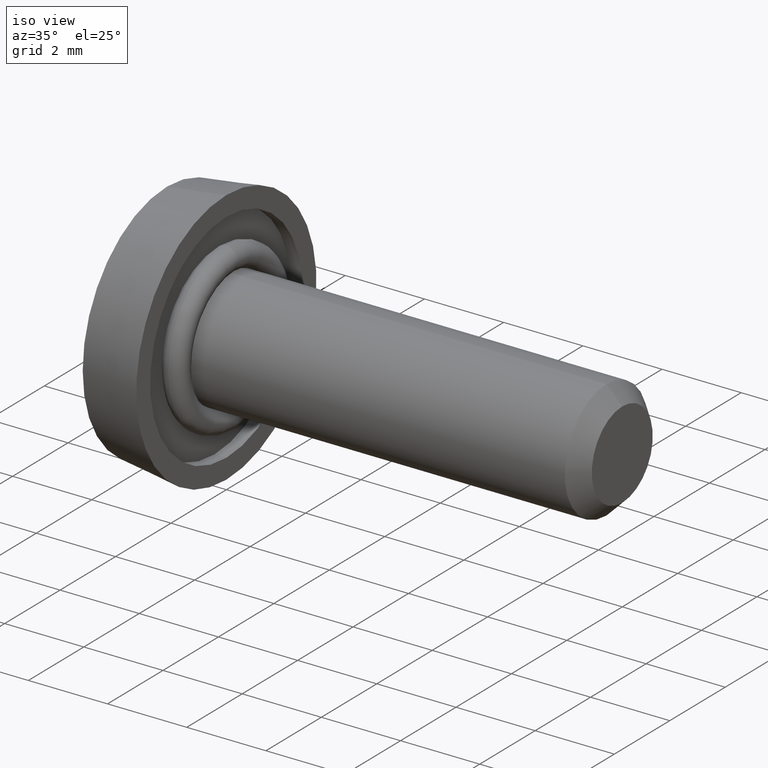
[diagram: clean part render]
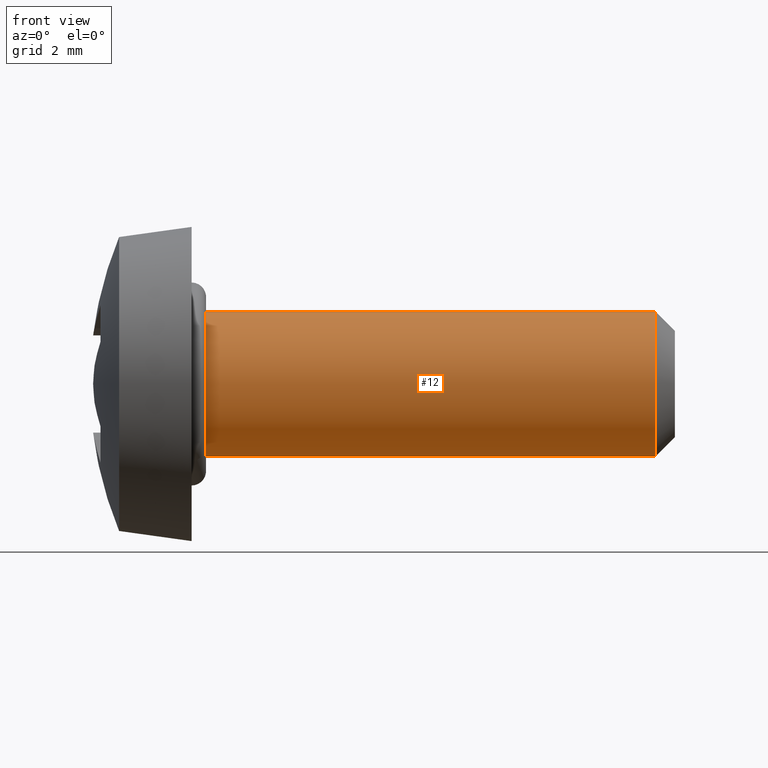
[diagram: tour spotlight — one face highlighted and labeled with its STEP entity id]
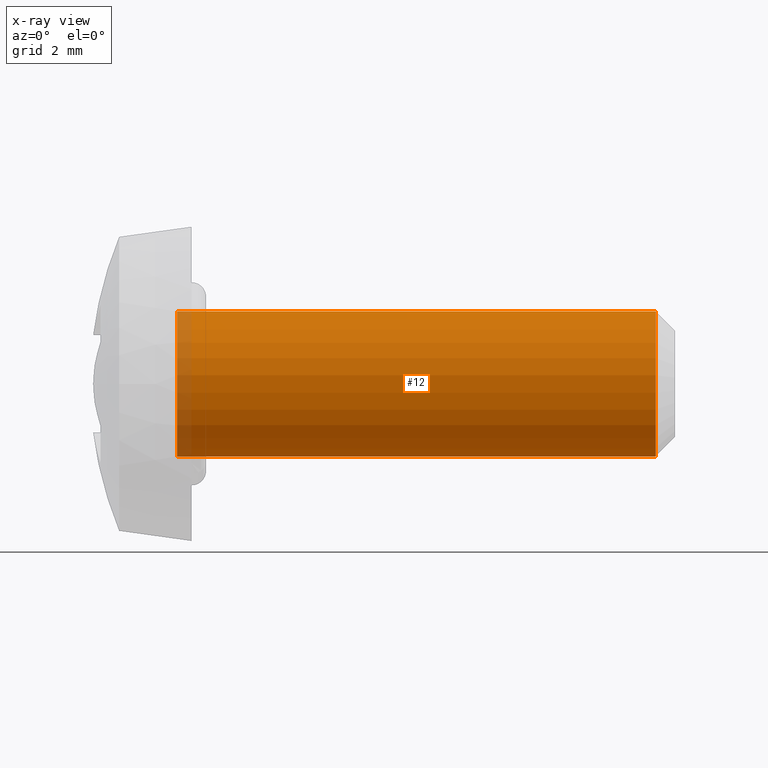
[diagram: x-ray of the same camera — body ghosted, this tour face saturated]
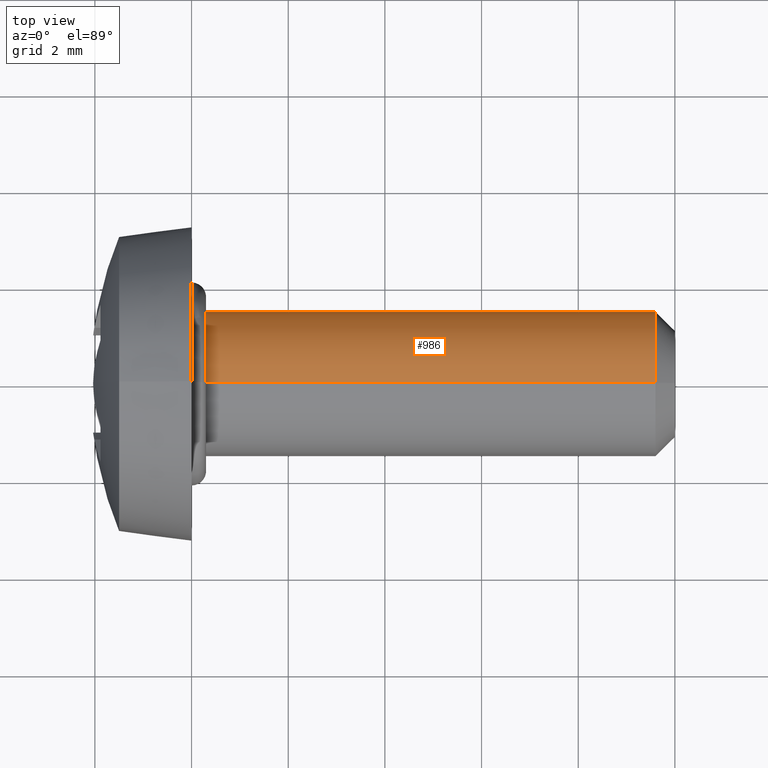
[diagram: tour spotlight — one face highlighted and labeled with its STEP entity id]
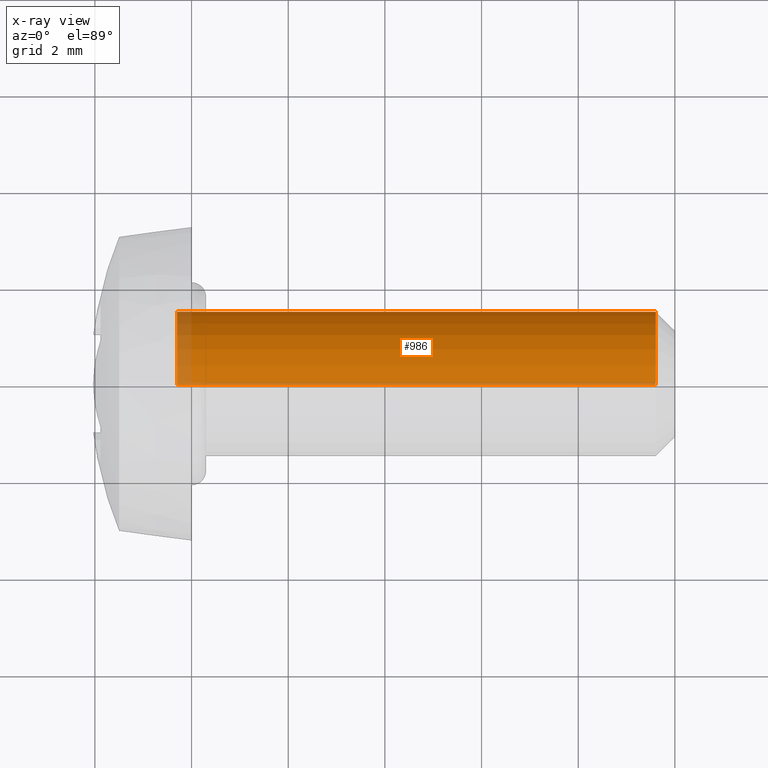
[diagram: x-ray of the same camera — body ghosted, this tour face saturated]
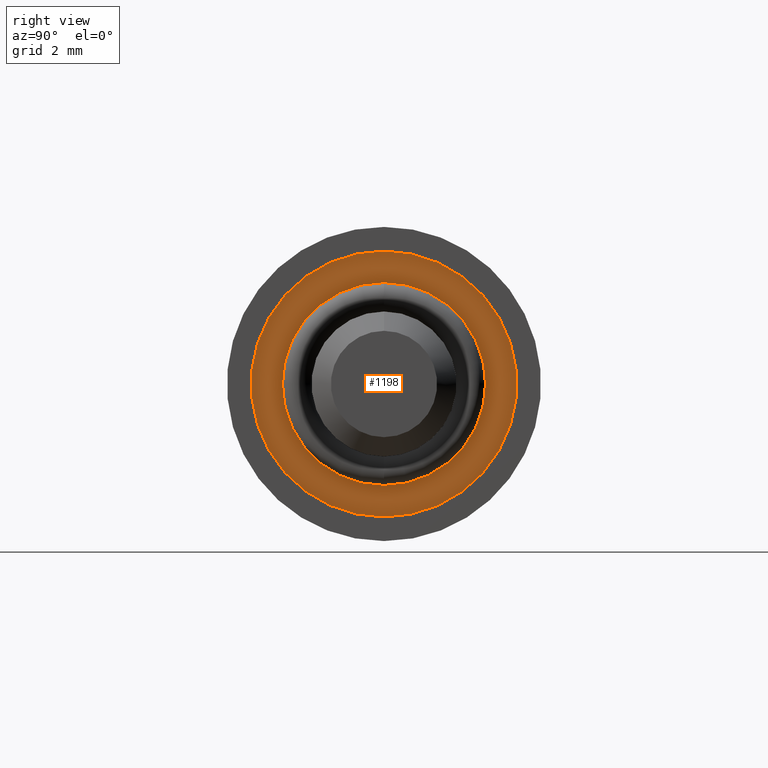
[diagram: tour spotlight — one face highlighted and labeled with its STEP entity id]
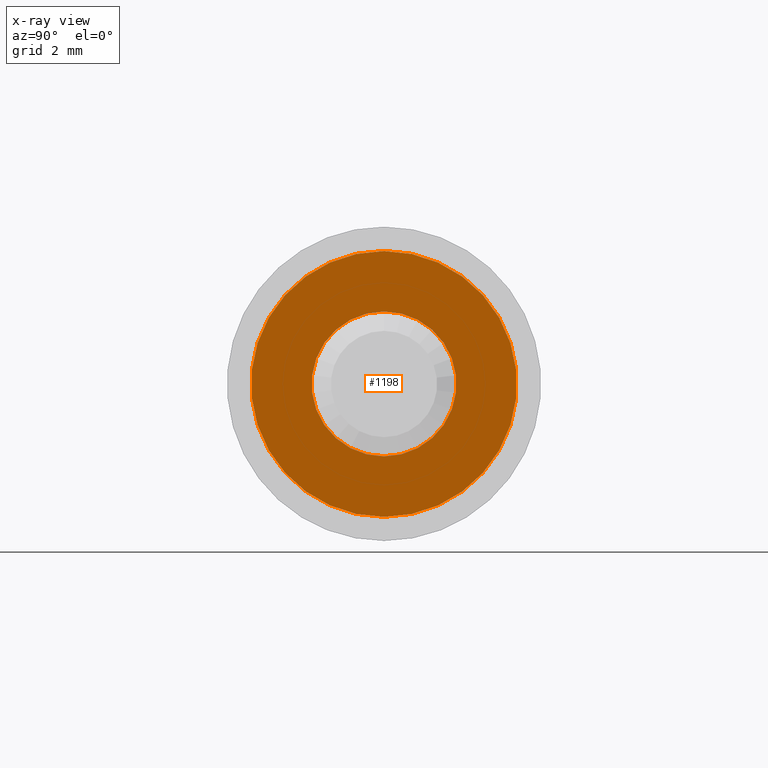
[diagram: x-ray of the same camera — body ghosted, this tour face saturated]
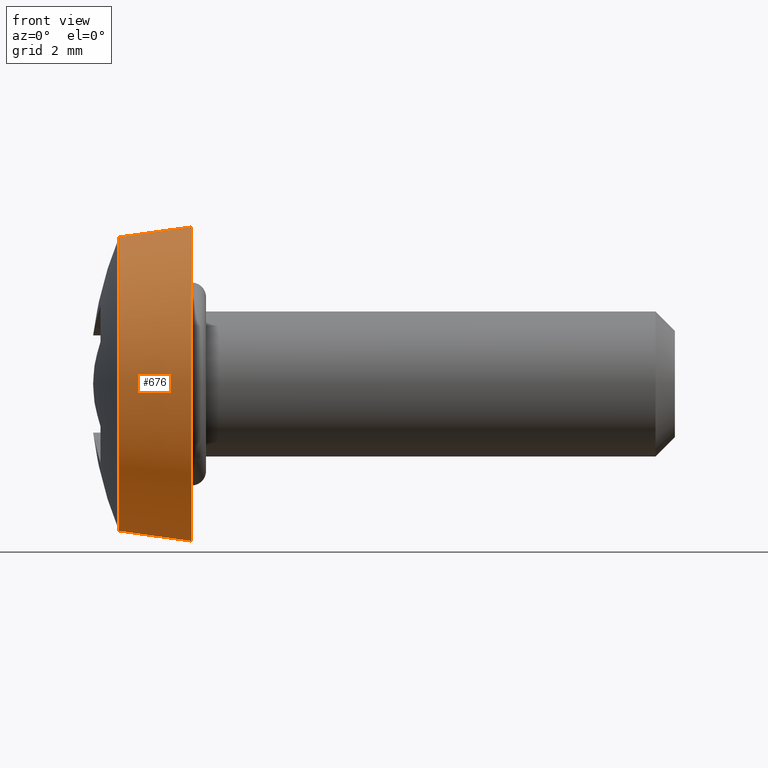
[diagram: tour spotlight — one face highlighted and labeled with its STEP entity id]
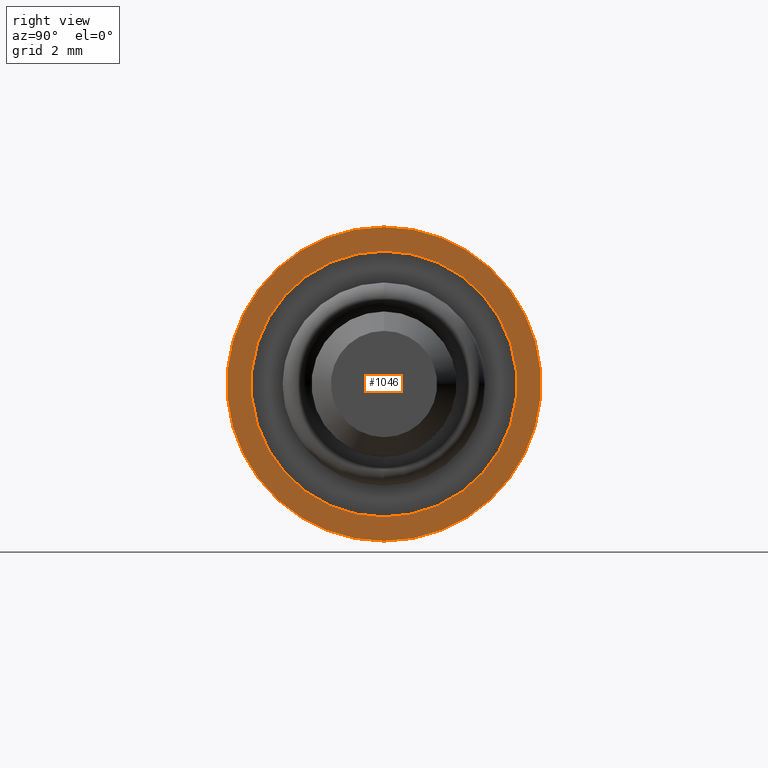
[diagram: tour spotlight — one face highlighted and labeled with its STEP entity id]
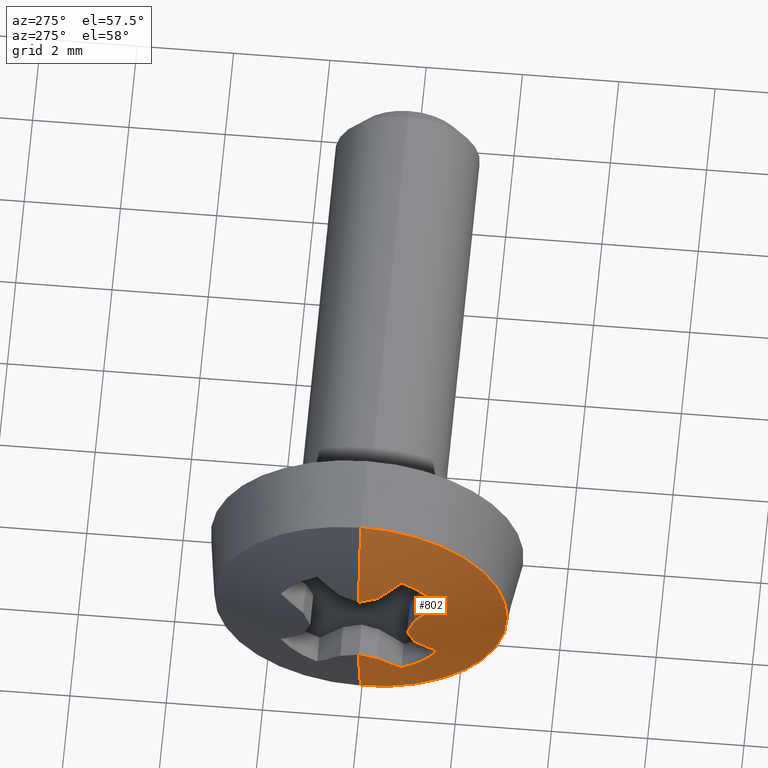
[diagram: tour spotlight — one face highlighted and labeled with its STEP entity id]
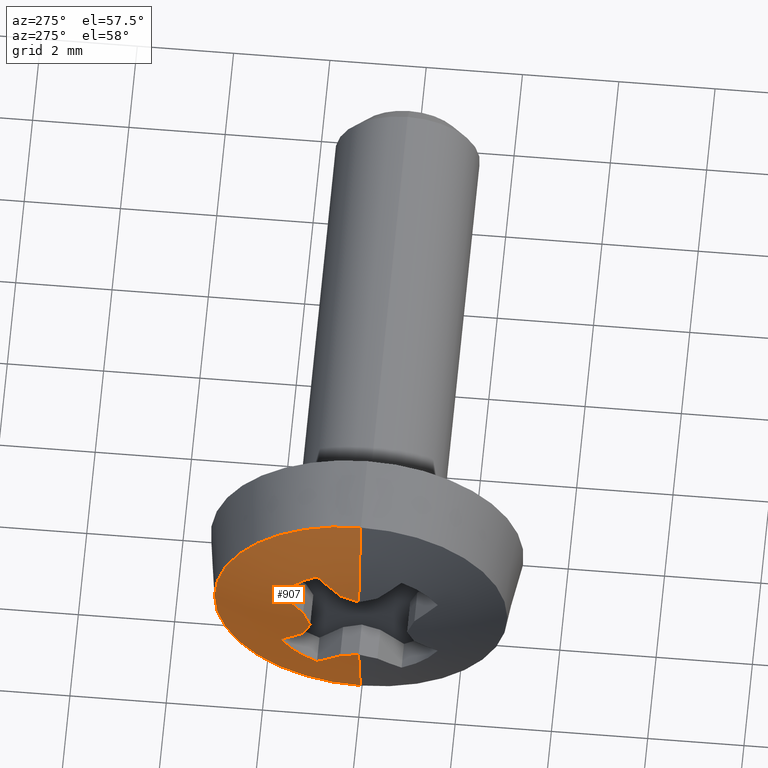
[diagram: tour spotlight — one face highlighted and labeled with its STEP entity id]
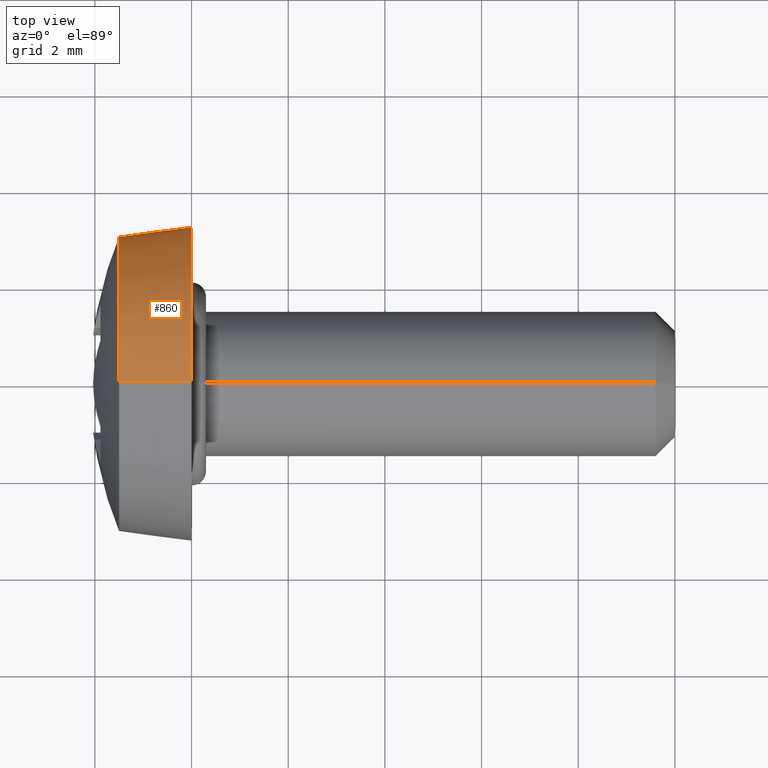
[diagram: tour spotlight — one face highlighted and labeled with its STEP entity id]
A machine part: a face-by-face anatomy tour. The part has 38 B-rep faces; the first image is the clean iso view, then the 8 largest visible faces are spotlighted one at a time (largest first), each with its STEP entity span.

Face 1 — front view, entity #12. An x-ray twin of the same camera follows (body ghosted, this face saturated) — the face is partly hidden behind the body. In plain terms, the highlighted cylindrical surface (partial cylindrical patch) has radius 1.5 mm, axis along (-1, -0, -0).
Definition (entity closure, byte-faithful):
#12 = ADVANCED_FACE ( 'NONE', ( #1003 ), #508, .T. ) ;
#41 = EDGE_CURVE ( 'NONE', #803, #1025, #533, .T. ) ;
#67 = EDGE_LOOP ( 'NONE', ( #706, #188, #388, #282 ) ) ;
#106 = DIRECTION ( 'NONE',  ( 0.0000000000000000000, 0.0000000000000000000, -1.000000000000000000 ) ) ;
#124 = EDGE_CURVE ( 'NONE', #1025, #276, #1193, .T. ) ;
#138 = AXIS2_PLACEMENT_3D ( 'NONE', #589, #918, #813 ) ;
#180 = VECTOR ( 'NONE', #623, 1000.000000000000000 ) ;
#188 = ORIENTED_EDGE ( 'NONE', *, *, #41, .T. ) ;
#226 = LINE ( 'NONE', #977, #758 ) ;
#276 = VERTEX_POINT ( 'NONE', #645 ) ;
#282 = ORIENTED_EDGE ( 'NONE', *, *, #577, .T. ) ;
#386 = VERTEX_POINT ( 'NONE', #815 ) ;
#388 = ORIENTED_EDGE ( 'NONE', *, *, #124, .T. ) ;
#485 = CARTESIAN_POINT ( 'NONE',  ( 9.600000000000001400, 1.836970198721029900E-016, -1.500000000000000400 ) ) ;
#508 = CYLINDRICAL_SURFACE ( 'NONE', #138, 1.500000000000000200 ) ;
#533 = CIRCLE ( 'NONE', #1111, 1.500000000000000200 ) ;
#577 = EDGE_CURVE ( 'NONE', #276, #386, #779, .T. ) ;
#589 = CARTESIAN_POINT ( 'NONE',  ( 10.00000000000000000, 0.0000000000000000000, 0.0000000000000000000 ) ) ;
#621 = CARTESIAN_POINT ( 'NONE',  ( 9.600000000000001400, 0.0000000000000000000, 1.500000000000000400 ) ) ;
#623 = DIRECTION ( 'NONE',  ( -1.000000000000000000, -0.0000000000000000000, -0.0000000000000000000 ) ) ;
#632 = AXIS2_PLACEMENT_3D ( 'NONE', #1131, #1179, #106 ) ;
#645 = CARTESIAN_POINT ( 'NONE',  ( -0.2999999999999999900, 0.0000000000000000000, 1.500000000000000200 ) ) ;
#666 = CARTESIAN_POINT ( 'NONE',  ( 10.00000000000000000, 0.0000000000000000000, 1.500000000000000200 ) ) ;
#706 = ORIENTED_EDGE ( 'NONE', *, *, #1060, .F. ) ;
#708 = DIRECTION ( 'NONE',  ( 0.0000000000000000000, 0.0000000000000000000, -1.000000000000000000 ) ) ;
#758 = VECTOR ( 'NONE', #770, 1000.000000000000000 ) ;
#770 = DIRECTION ( 'NONE',  ( -1.000000000000000000, -0.0000000000000000000, -0.0000000000000000000 ) ) ;
#779 = CIRCLE ( 'NONE', #632, 1.500000000000000200 ) ;
#803 = VERTEX_POINT ( 'NONE', #485 ) ;
#813 = DIRECTION ( 'NONE',  ( 0.0000000000000000000, 0.0000000000000000000, 1.000000000000000000 ) ) ;
#815 = CARTESIAN_POINT ( 'NONE',  ( -0.2999999999999999900, 1.836970198721030200E-016, -1.500000000000000200 ) ) ;
#918 = DIRECTION ( 'NONE',  ( -1.000000000000000000, -0.0000000000000000000, -0.0000000000000000000 ) ) ;
#977 = CARTESIAN_POINT ( 'NONE',  ( 10.00000000000000000, 1.836970198721030200E-016, -1.500000000000000200 ) ) ;
#1003 = FACE_OUTER_BOUND ( 'NONE', #67, .T. ) ;
#1025 = VERTEX_POINT ( 'NONE', #621 ) ;
#1049 = CARTESIAN_POINT ( 'NONE',  ( 9.600000000000001400, 0.0000000000000000000, 0.0000000000000000000 ) ) ;
#1060 = EDGE_CURVE ( 'NONE', #803, #386, #226, .T. ) ;
#1111 = AXIS2_PLACEMENT_3D ( 'NONE', #1049, #1162, #708 ) ;
#1131 = CARTESIAN_POINT ( 'NONE',  ( -0.2999999999999999900, 0.0000000000000000000, 0.0000000000000000000 ) ) ;
#1162 = DIRECTION ( 'NONE',  ( -1.000000000000000000, 0.0000000000000000000, 0.0000000000000000000 ) ) ;
#1179 = DIRECTION ( 'NONE',  ( 1.000000000000000000, 0.0000000000000000000, 0.0000000000000000000 ) ) ;
#1193 = LINE ( 'NONE', #666, #180 ) ;

Face 2 — top view, entity #986. An x-ray twin of the same camera follows (body ghosted, this face saturated) — the face is partly hidden behind the body. In plain terms, the highlighted cylindrical surface (partial cylindrical patch) has radius 1.5 mm, axis along (-1, -0, -0).
Definition (entity closure, byte-faithful):
#97 = CIRCLE ( 'NONE', #880, 1.500000000000000200 ) ;
#115 = FACE_OUTER_BOUND ( 'NONE', #870, .T. ) ;
#124 = EDGE_CURVE ( 'NONE', #1025, #276, #1193, .T. ) ;
#169 = AXIS2_PLACEMENT_3D ( 'NONE', #440, #244, #512 ) ;
#180 = VECTOR ( 'NONE', #623, 1000.000000000000000 ) ;
#226 = LINE ( 'NONE', #977, #758 ) ;
#244 = DIRECTION ( 'NONE',  ( 1.000000000000000000, 0.0000000000000000000, 0.0000000000000000000 ) ) ;
#276 = VERTEX_POINT ( 'NONE', #645 ) ;
#297 = DIRECTION ( 'NONE',  ( 0.0000000000000000000, 0.0000000000000000000, -1.000000000000000000 ) ) ;
#320 = CYLINDRICAL_SURFACE ( 'NONE', #835, 1.500000000000000200 ) ;
#386 = VERTEX_POINT ( 'NONE', #815 ) ;
#440 = CARTESIAN_POINT ( 'NONE',  ( -0.2999999999999999900, 0.0000000000000000000, 0.0000000000000000000 ) ) ;
#485 = CARTESIAN_POINT ( 'NONE',  ( 9.600000000000001400, 1.836970198721029900E-016, -1.500000000000000400 ) ) ;
#512 = DIRECTION ( 'NONE',  ( 0.0000000000000000000, 0.0000000000000000000, -1.000000000000000000 ) ) ;
#554 = ORIENTED_EDGE ( 'NONE', *, *, #1212, .T. ) ;
#621 = CARTESIAN_POINT ( 'NONE',  ( 9.600000000000001400, 0.0000000000000000000, 1.500000000000000400 ) ) ;
#623 = DIRECTION ( 'NONE',  ( -1.000000000000000000, -0.0000000000000000000, -0.0000000000000000000 ) ) ;
#645 = CARTESIAN_POINT ( 'NONE',  ( -0.2999999999999999900, 0.0000000000000000000, 1.500000000000000200 ) ) ;
#666 = CARTESIAN_POINT ( 'NONE',  ( 10.00000000000000000, 0.0000000000000000000, 1.500000000000000200 ) ) ;
#682 = DIRECTION ( 'NONE',  ( -1.000000000000000000, 0.0000000000000000000, 0.0000000000000000000 ) ) ;
#734 = ORIENTED_EDGE ( 'NONE', *, *, #1145, .T. ) ;
#758 = VECTOR ( 'NONE', #770, 1000.000000000000000 ) ;
#763 = DIRECTION ( 'NONE',  ( -1.000000000000000000, -0.0000000000000000000, -0.0000000000000000000 ) ) ;
#770 = DIRECTION ( 'NONE',  ( -1.000000000000000000, -0.0000000000000000000, -0.0000000000000000000 ) ) ;
#803 = VERTEX_POINT ( 'NONE', #485 ) ;
#815 = CARTESIAN_POINT ( 'NONE',  ( -0.2999999999999999900, 1.836970198721030200E-016, -1.500000000000000200 ) ) ;
#835 = AXIS2_PLACEMENT_3D ( 'NONE', #1218, #763, #1094 ) ;
#870 = EDGE_LOOP ( 'NONE', ( #554, #1217, #734, #1105 ) ) ;
#880 = AXIS2_PLACEMENT_3D ( 'NONE', #968, #682, #297 ) ;
#948 = CIRCLE ( 'NONE', #169, 1.500000000000000200 ) ;
#968 = CARTESIAN_POINT ( 'NONE',  ( 9.600000000000001400, 0.0000000000000000000, 0.0000000000000000000 ) ) ;
#977 = CARTESIAN_POINT ( 'NONE',  ( 10.00000000000000000, 1.836970198721030200E-016, -1.500000000000000200 ) ) ;
#986 = ADVANCED_FACE ( 'NONE', ( #115 ), #320, .T. ) ;
#1025 = VERTEX_POINT ( 'NONE', #621 ) ;
#1060 = EDGE_CURVE ( 'NONE', #803, #386, #226, .T. ) ;
#1094 = DIRECTION ( 'NONE',  ( 0.0000000000000000000, 0.0000000000000000000, 1.000000000000000000 ) ) ;
#1105 = ORIENTED_EDGE ( 'NONE', *, *, #124, .F. ) ;
#1145 = EDGE_CURVE ( 'NONE', #386, #276, #948, .T. ) ;
#1193 = LINE ( 'NONE', #666, #180 ) ;
#1212 = EDGE_CURVE ( 'NONE', #1025, #803, #97, .T. ) ;
#1217 = ORIENTED_EDGE ( 'NONE', *, *, #1060, .T. ) ;
#1218 = CARTESIAN_POINT ( 'NONE',  ( 10.00000000000000000, 0.0000000000000000000, 0.0000000000000000000 ) ) ;

Face 3 — right view, entity #1198. An x-ray twin of the same camera follows (body ghosted, this face saturated) — the face is partly hidden behind the body. In plain terms, the highlighted planar face has unit normal (1, 0, 0).
Definition (entity closure, byte-faithful):
#1 = CARTESIAN_POINT ( 'NONE',  ( -0.2999999999999999900, 0.0000000000000000000, 0.0000000000000000000 ) ) ;
#94 = CARTESIAN_POINT ( 'NONE',  ( -0.2999999999999999900, 0.0000000000000000000, -2.750000000000000000 ) ) ;
#106 = DIRECTION ( 'NONE',  ( 0.0000000000000000000, 0.0000000000000000000, -1.000000000000000000 ) ) ;
#169 = AXIS2_PLACEMENT_3D ( 'NONE', #440, #244, #512 ) ;
#202 = VERTEX_POINT ( 'NONE', #855 ) ;
#234 = ORIENTED_EDGE ( 'NONE', *, *, #764, .T. ) ;
#241 = VERTEX_POINT ( 'NONE', #94 ) ;
#244 = DIRECTION ( 'NONE',  ( 1.000000000000000000, 0.0000000000000000000, 0.0000000000000000000 ) ) ;
#276 = VERTEX_POINT ( 'NONE', #645 ) ;
#299 = EDGE_CURVE ( 'NONE', #241, #202, #581, .T. ) ;
#386 = VERTEX_POINT ( 'NONE', #815 ) ;
#412 = DIRECTION ( 'NONE',  ( 0.0000000000000000000, 0.0000000000000000000, -1.000000000000000000 ) ) ;
#440 = CARTESIAN_POINT ( 'NONE',  ( -0.2999999999999999900, 0.0000000000000000000, 0.0000000000000000000 ) ) ;
#512 = DIRECTION ( 'NONE',  ( 0.0000000000000000000, 0.0000000000000000000, -1.000000000000000000 ) ) ;
#541 = DIRECTION ( 'NONE',  ( 1.000000000000000000, 0.0000000000000000000, 0.0000000000000000000 ) ) ;
#568 = EDGE_LOOP ( 'NONE', ( #795, #744 ) ) ;
#577 = EDGE_CURVE ( 'NONE', #276, #386, #779, .T. ) ;
#581 = CIRCLE ( 'NONE', #658, 2.750000000000000000 ) ;
#600 = CARTESIAN_POINT ( 'NONE',  ( -0.2999999999999999900, 0.0000000000000000000, 0.0000000000000000000 ) ) ;
#632 = AXIS2_PLACEMENT_3D ( 'NONE', #1131, #1179, #106 ) ;
#638 = CIRCLE ( 'NONE', #1130, 2.750000000000000000 ) ;
#645 = CARTESIAN_POINT ( 'NONE',  ( -0.2999999999999999900, 0.0000000000000000000, 1.500000000000000200 ) ) ;
#658 = AXIS2_PLACEMENT_3D ( 'NONE', #845, #967, #1013 ) ;
#695 = ORIENTED_EDGE ( 'NONE', *, *, #299, .T. ) ;
#744 = ORIENTED_EDGE ( 'NONE', *, *, #1145, .F. ) ;
#764 = EDGE_CURVE ( 'NONE', #202, #241, #638, .T. ) ;
#779 = CIRCLE ( 'NONE', #632, 1.500000000000000200 ) ;
#795 = ORIENTED_EDGE ( 'NONE', *, *, #577, .F. ) ;
#808 = AXIS2_PLACEMENT_3D ( 'NONE', #600, #541, #412 ) ;
#815 = CARTESIAN_POINT ( 'NONE',  ( -0.2999999999999999900, 1.836970198721030200E-016, -1.500000000000000200 ) ) ;
#824 = FACE_OUTER_BOUND ( 'NONE', #1205, .T. ) ;
#845 = CARTESIAN_POINT ( 'NONE',  ( -0.2999999999999999900, 0.0000000000000000000, 0.0000000000000000000 ) ) ;
#855 = CARTESIAN_POINT ( 'NONE',  ( -0.2999999999999999900, 3.367778697655221000E-016, 2.750000000000000000 ) ) ;
#948 = CIRCLE ( 'NONE', #169, 1.500000000000000200 ) ;
#967 = DIRECTION ( 'NONE',  ( 1.000000000000000000, 0.0000000000000000000, 0.0000000000000000000 ) ) ;
#1013 = DIRECTION ( 'NONE',  ( 0.0000000000000000000, 0.0000000000000000000, -1.000000000000000000 ) ) ;
#1018 = PLANE ( 'NONE',  #808 ) ;
#1047 = DIRECTION ( 'NONE',  ( 1.000000000000000000, 0.0000000000000000000, 0.0000000000000000000 ) ) ;
#1069 = FACE_BOUND ( 'NONE', #568, .T. ) ;
#1076 = DIRECTION ( 'NONE',  ( 0.0000000000000000000, 0.0000000000000000000, -1.000000000000000000 ) ) ;
#1130 = AXIS2_PLACEMENT_3D ( 'NONE', #1, #1047, #1076 ) ;
#1131 = CARTESIAN_POINT ( 'NONE',  ( -0.2999999999999999900, 0.0000000000000000000, 0.0000000000000000000 ) ) ;
#1145 = EDGE_CURVE ( 'NONE', #386, #276, #948, .T. ) ;
#1179 = DIRECTION ( 'NONE',  ( 1.000000000000000000, 0.0000000000000000000, 0.0000000000000000000 ) ) ;
#1198 = ADVANCED_FACE ( 'NONE', ( #1069, #824 ), #1018, .T. ) ;
#1205 = EDGE_LOOP ( 'NONE', ( #695, #234 ) ) ;

Face 4 — front view, entity #676. In plain terms, the highlighted conical surface has half-angle 7.93 deg.
Definition (entity closure, byte-faithful):
#5 = CARTESIAN_POINT ( 'NONE',  ( -1.499999999999716900, 3.724207365802925200E-016, 3.041046094593039800 ) ) ;
#35 = AXIS2_PLACEMENT_3D ( 'NONE', #873, #306, #214 ) ;
#62 = DIRECTION ( 'NONE',  ( 0.9904363577930522800, 1.689649638480148500E-017, 0.1379703633452966600 ) ) ;
#66 = CARTESIAN_POINT ( 'NONE',  ( 0.0000000000000000000, 0.0000000000000000000, 0.0000000000000000000 ) ) ;
#108 = DIRECTION ( 'NONE',  ( 0.0000000000000000000, 0.0000000000000000000, -1.000000000000000000 ) ) ;
#152 = CARTESIAN_POINT ( 'NONE',  ( 0.0000000000000000000, 0.0000000000000000000, -3.250000000000002200 ) ) ;
#203 = CARTESIAN_POINT ( 'NONE',  ( 0.0000000000000000000, 3.980102097228900200E-016, 3.250000000000002200 ) ) ;
#214 = DIRECTION ( 'NONE',  ( 0.0000000000000000000, 0.0000000000000000000, -1.000000000000000000 ) ) ;
#220 = VERTEX_POINT ( 'NONE', #5 ) ;
#235 = DIRECTION ( 'NONE',  ( 0.9904363577930522800, 0.0000000000000000000, -0.1379703633452966600 ) ) ;
#266 = VERTEX_POINT ( 'NONE', #203 ) ;
#268 = DIRECTION ( 'NONE',  ( 1.000000000000000000, -0.0000000000000000000, -0.0000000000000000000 ) ) ;
#287 = VECTOR ( 'NONE', #62, 999.9999999999998900 ) ;
#306 = DIRECTION ( 'NONE',  ( 1.000000000000000000, -0.0000000000000000000, -0.0000000000000000000 ) ) ;
#313 = ORIENTED_EDGE ( 'NONE', *, *, #689, .T. ) ;
#316 = ORIENTED_EDGE ( 'NONE', *, *, #783, .F. ) ;
#409 = LINE ( 'NONE', #1186, #668 ) ;
#436 = EDGE_LOOP ( 'NONE', ( #551, #313, #945, #316 ) ) ;
#443 = CIRCLE ( 'NONE', #886, 3.041046094593039300 ) ;
#488 = VERTEX_POINT ( 'NONE', #152 ) ;
#543 = CARTESIAN_POINT ( 'NONE',  ( 0.0000000000000000000, 3.980102097228900200E-016, 3.250000000000002200 ) ) ;
#551 = ORIENTED_EDGE ( 'NONE', *, *, #1019, .F. ) ;
#668 = VECTOR ( 'NONE', #235, 999.9999999999998900 ) ;
#674 = DIRECTION ( 'NONE',  ( 1.000000000000000000, -0.0000000000000000000, -0.0000000000000000000 ) ) ;
#676 = ADVANCED_FACE ( 'NONE', ( #760 ), #919, .T. ) ;
#678 = DIRECTION ( 'NONE',  ( 0.0000000000000000000, 0.0000000000000000000, -1.000000000000000000 ) ) ;
#689 = EDGE_CURVE ( 'NONE', #220, #973, #443, .T. ) ;
#691 = CARTESIAN_POINT ( 'NONE',  ( -1.499999999999716900, 0.0000000000000000000, 0.0000000000000000000 ) ) ;
#753 = EDGE_CURVE ( 'NONE', #973, #488, #409, .T. ) ;
#760 = FACE_OUTER_BOUND ( 'NONE', #436, .T. ) ;
#762 = AXIS2_PLACEMENT_3D ( 'NONE', #66, #268, #108 ) ;
#783 = EDGE_CURVE ( 'NONE', #266, #488, #1132, .T. ) ;
#800 = CARTESIAN_POINT ( 'NONE',  ( -1.499999999999716900, 0.0000000000000000000, -3.041046094593039800 ) ) ;
#806 = LINE ( 'NONE', #543, #287 ) ;
#873 = CARTESIAN_POINT ( 'NONE',  ( 0.0000000000000000000, 0.0000000000000000000, 0.0000000000000000000 ) ) ;
#886 = AXIS2_PLACEMENT_3D ( 'NONE', #691, #674, #678 ) ;
#919 = CONICAL_SURFACE ( 'NONE', #762, 3.250000000000002200, 0.1384118858968811600 ) ;
#945 = ORIENTED_EDGE ( 'NONE', *, *, #753, .T. ) ;
#973 = VERTEX_POINT ( 'NONE', #800 ) ;
#1019 = EDGE_CURVE ( 'NONE', #220, #266, #806, .T. ) ;
#1132 = CIRCLE ( 'NONE', #35, 3.250000000000002200 ) ;
#1186 = CARTESIAN_POINT ( 'NONE',  ( 0.0000000000000000000, 0.0000000000000000000, -3.250000000000002200 ) ) ;

Face 5 — right view, entity #1046. In plain terms, the highlighted planar face has unit normal (1, 0, 0).
Definition (entity closure, byte-faithful):
#35 = AXIS2_PLACEMENT_3D ( 'NONE', #873, #306, #214 ) ;
#46 = PLANE ( 'NONE',  #1081 ) ;
#86 = FACE_OUTER_BOUND ( 'NONE', #184, .T. ) ;
#87 = ORIENTED_EDGE ( 'NONE', *, *, #187, .F. ) ;
#152 = CARTESIAN_POINT ( 'NONE',  ( 0.0000000000000000000, 0.0000000000000000000, -3.250000000000002200 ) ) ;
#184 = EDGE_LOOP ( 'NONE', ( #874, #1172 ) ) ;
#187 = EDGE_CURVE ( 'NONE', #524, #1077, #1100, .T. ) ;
#203 = CARTESIAN_POINT ( 'NONE',  ( 0.0000000000000000000, 3.980102097228900200E-016, 3.250000000000002200 ) ) ;
#214 = DIRECTION ( 'NONE',  ( 0.0000000000000000000, 0.0000000000000000000, -1.000000000000000000 ) ) ;
#266 = VERTEX_POINT ( 'NONE', #203 ) ;
#281 = CARTESIAN_POINT ( 'NONE',  ( 0.0000000000000000000, 0.0000000000000000000, 0.0000000000000000000 ) ) ;
#306 = DIRECTION ( 'NONE',  ( 1.000000000000000000, -0.0000000000000000000, -0.0000000000000000000 ) ) ;
#394 = DIRECTION ( 'NONE',  ( 0.0000000000000000000, 0.0000000000000000000, -1.000000000000000000 ) ) ;
#395 = AXIS2_PLACEMENT_3D ( 'NONE', #637, #875, #938 ) ;
#416 = DIRECTION ( 'NONE',  ( 1.000000000000000000, 0.0000000000000000000, 0.0000000000000000000 ) ) ;
#444 = CARTESIAN_POINT ( 'NONE',  ( 0.0000000000000000000, 0.0000000000000000000, -2.750000000000000000 ) ) ;
#487 = CARTESIAN_POINT ( 'NONE',  ( 0.0000000000000000000, 0.0000000000000000000, 0.0000000000000000000 ) ) ;
#488 = VERTEX_POINT ( 'NONE', #152 ) ;
#524 = VERTEX_POINT ( 'NONE', #881 ) ;
#578 = CIRCLE ( 'NONE', #944, 2.750000000000000000 ) ;
#582 = ORIENTED_EDGE ( 'NONE', *, *, #1223, .F. ) ;
#593 = DIRECTION ( 'NONE',  ( -0.0000000000000000000, 0.0000000000000000000, -1.000000000000000000 ) ) ;
#618 = CIRCLE ( 'NONE', #651, 3.250000000000002200 ) ;
#637 = CARTESIAN_POINT ( 'NONE',  ( 0.0000000000000000000, 0.0000000000000000000, 0.0000000000000000000 ) ) ;
#651 = AXIS2_PLACEMENT_3D ( 'NONE', #487, #1149, #811 ) ;
#767 = CARTESIAN_POINT ( 'NONE',  ( 0.0000000000000000000, 3.250000000000002200, 0.0000000000000000000 ) ) ;
#783 = EDGE_CURVE ( 'NONE', #266, #488, #1132, .T. ) ;
#811 = DIRECTION ( 'NONE',  ( 0.0000000000000000000, 0.0000000000000000000, -1.000000000000000000 ) ) ;
#873 = CARTESIAN_POINT ( 'NONE',  ( 0.0000000000000000000, 0.0000000000000000000, 0.0000000000000000000 ) ) ;
#874 = ORIENTED_EDGE ( 'NONE', *, *, #978, .T. ) ;
#875 = DIRECTION ( 'NONE',  ( 1.000000000000000000, 0.0000000000000000000, 0.0000000000000000000 ) ) ;
#881 = CARTESIAN_POINT ( 'NONE',  ( 0.0000000000000000000, 3.367778697655221000E-016, 2.750000000000000000 ) ) ;
#938 = DIRECTION ( 'NONE',  ( 0.0000000000000000000, 0.0000000000000000000, -1.000000000000000000 ) ) ;
#939 = EDGE_LOOP ( 'NONE', ( #582, #87 ) ) ;
#944 = AXIS2_PLACEMENT_3D ( 'NONE', #281, #416, #394 ) ;
#978 = EDGE_CURVE ( 'NONE', #488, #266, #618, .T. ) ;
#1027 = FACE_BOUND ( 'NONE', #939, .T. ) ;
#1042 = DIRECTION ( 'NONE',  ( 1.000000000000000000, 0.0000000000000000000, -0.0000000000000000000 ) ) ;
#1046 = ADVANCED_FACE ( 'NONE', ( #1027, #86 ), #46, .T. ) ;
#1077 = VERTEX_POINT ( 'NONE', #444 ) ;
#1081 = AXIS2_PLACEMENT_3D ( 'NONE', #767, #1042, #593 ) ;
#1100 = CIRCLE ( 'NONE', #395, 2.750000000000000000 ) ;
#1132 = CIRCLE ( 'NONE', #35, 3.250000000000002200 ) ;
#1149 = DIRECTION ( 'NONE',  ( 1.000000000000000000, -0.0000000000000000000, -0.0000000000000000000 ) ) ;
#1172 = ORIENTED_EDGE ( 'NONE', *, *, #783, .T. ) ;
#1223 = EDGE_CURVE ( 'NONE', #1077, #524, #578, .T. ) ;

Face 6 — auxiliary view, entity #802. In plain terms, the highlighted toroidal blend (fillet) surface has major radius 0.0048 mm and minor (blend) radius 7.9824 mm.
Definition (entity closure, byte-faithful):
#5 = CARTESIAN_POINT ( 'NONE',  ( -1.499999999999716900, 3.724207365802925200E-016, 3.041046094593039800 ) ) ;
#48 = ORIENTED_EDGE ( 'NONE', *, *, #900, .T. ) ;
#64 = ORIENTED_EDGE ( 'NONE', *, *, #428, .T. ) ;
#68 = CARTESIAN_POINT ( 'NONE',  ( -2.007366982565541600, -0.3868178104666940600, 1.154250712796149200 ) ) ;
#74 = CARTESIAN_POINT ( 'NONE',  ( -2.020851086425033300, -0.2581194595962448800, 1.104848044528589300 ) ) ;
#75 = EDGE_CURVE ( 'NONE', #675, #175, #158, .T. ) ;
#77 = B_SPLINE_CURVE_WITH_KNOTS ( 'NONE', 3,
 ( #530, #1118, #987, #1164 ),
 .UNSPECIFIED., .F., .F.,
 ( 4, 4 ),
 ( 2.902990933053994100E-007, 0.0006940209021592500300 ),
 .UNSPECIFIED. ) ;
#107 = ORIENTED_EDGE ( 'NONE', *, *, #689, .F. ) ;
#121 = CARTESIAN_POINT ( 'NONE',  ( 5.882418199830265600, 0.0000000000000000000, 0.0000000000000000000 ) ) ;
#135 = ORIENTED_EDGE ( 'NONE', *, *, #879, .T. ) ;
#141 = B_SPLINE_CURVE_WITH_KNOTS ( 'NONE', 3,
 ( #453, #792, #463, #354 ),
 .UNSPECIFIED., .F., .F.,
 ( 4, 4 ),
 ( 2.949178166988731400E-007, 0.0006940255208822763500 ),
 .UNSPECIFIED. ) ;
#158 = B_SPLINE_CURVE_WITH_KNOTS ( 'NONE', 3,
 ( #1113, #723, #694, #439 ),
 .UNSPECIFIED., .F., .F.,
 ( 4, 4 ),
 ( 2.847987763053888500E-007, 0.0006940154018421357100 ),
 .UNSPECIFIED. ) ;
#175 = VERTEX_POINT ( 'NONE', #1189 ) ;
#186 = VERTEX_POINT ( 'NONE', #1014 ) ;
#190 = DIRECTION ( 'NONE',  ( -0.0000000000000000000, -1.000000000000000000, -0.0000000000000000000 ) ) ;
#191 = CIRCLE ( 'NONE', #385, 1.850000000000013200 ) ;
#200 = ORIENTED_EDGE ( 'NONE', *, *, #75, .T. ) ;
#205 = B_SPLINE_CURVE_WITH_KNOTS ( 'NONE', 3,
 ( #457, #361, #540, #903 ),
 .UNSPECIFIED., .F., .F.,
 ( 4, 4 ),
 ( 2.151781294735629000E-007, 0.0004156108309141550400 ),
 .UNSPECIFIED. ) ;
#212 = AXIS2_PLACEMENT_3D ( 'NONE', #121, #981, #820 ) ;
#220 = VERTEX_POINT ( 'NONE', #5 ) ;
#263 = CARTESIAN_POINT ( 'NONE',  ( 5.882418199830265600, 0.0000000000000000000, -0.004777880495332540600 ) ) ;
#270 = CIRCLE ( 'NONE', #777, 7.982419629731391600 ) ;
#279 = EDGE_CURVE ( 'NONE', #175, #711, #205, .T. ) ;
#298 = CARTESIAN_POINT ( 'NONE',  ( -2.036991336030685500, 1.053483198554589900E-014, 1.005765267246758300 ) ) ;
#305 = CARTESIAN_POINT ( 'NONE',  ( -2.007366982565655700, -1.154250712796145200, -0.3868178104667061600 ) ) ;
#309 = EDGE_CURVE ( 'NONE', #186, #973, #270, .T. ) ;
#323 = DIRECTION ( 'NONE',  ( 0.0000000000000000000, 1.000000000000000000, -1.224646799147353200E-016 ) ) ;
#329 = CARTESIAN_POINT ( 'NONE',  ( -2.036991336030687300, -3.511610661848633000E-015, -1.005765267246758300 ) ) ;
#333 = EDGE_LOOP ( 'NONE', ( #690, #1210, #1110, #135, #200, #1169, #48, #64, #1168, #1034, #560, #952, #107 ) ) ;
#345 = EDGE_CURVE ( 'NONE', #1063, #983, #141, .T. ) ;
#354 = CARTESIAN_POINT ( 'NONE',  ( -2.007366982563981900, -0.3868178104665048700, -1.154250712796087500 ) ) ;
#361 = CARTESIAN_POINT ( 'NONE',  ( -2.020851086425034200, -1.104848044528604000, 0.2581194595961873200 ) ) ;
#363 = AXIS2_PLACEMENT_3D ( 'NONE', #916, #1175, #985 ) ;
#374 = CARTESIAN_POINT ( 'NONE',  ( -2.020851086425032400, -1.104848044528584400, -0.2581194595962511600 ) ) ;
#385 = AXIS2_PLACEMENT_3D ( 'NONE', #1144, #574, #1036 ) ;
#402 = EDGE_CURVE ( 'NONE', #983, #186, #890, .T. ) ;
#422 = B_SPLINE_CURVE_WITH_KNOTS ( 'NONE', 3,
 ( #646, #892, #1219, #897 ),
 .UNSPECIFIED., .F., .F.,
 ( 4, 4 ),
 ( 2.803385996576772300E-007, 0.0006940109416655943500 ),
 .UNSPECIFIED. ) ;
#428 = EDGE_CURVE ( 'NONE', #1178, #738, #77, .T. ) ;
#439 = CARTESIAN_POINT ( 'NONE',  ( -2.007366982563980200, -1.154250712796083300, 0.3868178104665169200 ) ) ;
#443 = CIRCLE ( 'NONE', #886, 3.041046094593039300 ) ;
#453 = CARTESIAN_POINT ( 'NONE',  ( -1.883802146954359800, -0.8778660937063521600, -1.628450527808812200 ) ) ;
#457 = CARTESIAN_POINT ( 'NONE',  ( -2.007366982563980200, -1.154250712796083300, 0.3868178104665169200 ) ) ;
#463 = CARTESIAN_POINT ( 'NONE',  ( -1.976094856721939900, -0.5517917443283809600, -1.313564188862171400 ) ) ;
#514 = EDGE_CURVE ( 'NONE', #738, #1063, #1059, .T. ) ;
#530 = CARTESIAN_POINT ( 'NONE',  ( -2.007366982565655700, -1.154250712796145200, -0.3868178104667061600 ) ) ;
#540 = CARTESIAN_POINT ( 'NONE',  ( -2.030723629678945500, -1.055352838585863000, 0.1291800398399617400 ) ) ;
#557 = VERTEX_POINT ( 'NONE', #696 ) ;
#560 = ORIENTED_EDGE ( 'NONE', *, *, #402, .T. ) ;
#574 = DIRECTION ( 'NONE',  ( 1.000000000000000000, -0.0000000000000000000, -0.0000000000000000000 ) ) ;
#584 = EDGE_CURVE ( 'NONE', #1090, #557, #710, .T. ) ;
#614 = EDGE_CURVE ( 'NONE', #557, #924, #422, .T. ) ;
#636 = CARTESIAN_POINT ( 'NONE',  ( 5.882418199830265600, 5.851216055317566200E-019, 0.004777880495332540600 ) ) ;
#646 = CARTESIAN_POINT ( 'NONE',  ( -2.007366982565541600, -0.3868178104666940600, 1.154250712796149200 ) ) ;
#655 = CARTESIAN_POINT ( 'NONE',  ( -2.007366982565655700, -1.154250712796145200, -0.3868178104667061600 ) ) ;
#674 = DIRECTION ( 'NONE',  ( 1.000000000000000000, -0.0000000000000000000, -0.0000000000000000000 ) ) ;
#675 = VERTEX_POINT ( 'NONE', #909 ) ;
#678 = DIRECTION ( 'NONE',  ( 0.0000000000000000000, 0.0000000000000000000, -1.000000000000000000 ) ) ;
#683 = EDGE_CURVE ( 'NONE', #1090, #220, #1190, .T. ) ;
#689 = EDGE_CURVE ( 'NONE', #220, #973, #443, .T. ) ;
#690 = ORIENTED_EDGE ( 'NONE', *, *, #683, .F. ) ;
#691 = CARTESIAN_POINT ( 'NONE',  ( -1.499999999999716900, 0.0000000000000000000, 0.0000000000000000000 ) ) ;
#694 = CARTESIAN_POINT ( 'NONE',  ( -1.976094858441079800, -1.313564180104146400, 0.5517917352592002200 ) ) ;
#696 = CARTESIAN_POINT ( 'NONE',  ( -2.007366982565541600, -0.3868178104666940600, 1.154250712796149200 ) ) ;
#704 = B_SPLINE_CURVE_WITH_KNOTS ( 'NONE', 3,
 ( #1068, #1122, #374, #655 ),
 .UNSPECIFIED., .F., .F.,
 ( 4, 4 ),
 ( 2.143753548535841400E-007, 0.0004156100281396139200 ),
 .UNSPECIFIED. ) ;
#710 = B_SPLINE_CURVE_WITH_KNOTS ( 'NONE', 3,
 ( #298, #759, #74, #68 ),
 .UNSPECIFIED., .F., .F.,
 ( 4, 4 ),
 ( 2.143753548538212000E-007, 0.0004156100281396220500 ),
 .UNSPECIFIED. ) ;
#711 = VERTEX_POINT ( 'NONE', #934 ) ;
#717 = DIRECTION ( 'NONE',  ( 0.0000000000000000000, 0.0000000000000000000, -1.000000000000000000 ) ) ;
#723 = CARTESIAN_POINT ( 'NONE',  ( -1.934908468780979900, -1.471631022616671300, 0.7154747422861801300 ) ) ;
#735 = CARTESIAN_POINT ( 'NONE',  ( -2.007366982563981900, -0.3868178104665048700, -1.154250712796087500 ) ) ;
#738 = VERTEX_POINT ( 'NONE', #799 ) ;
#759 = CARTESIAN_POINT ( 'NONE',  ( -2.030723629678951300, -0.1291800398400042000, 1.055352838585807800 ) ) ;
#777 = AXIS2_PLACEMENT_3D ( 'NONE', #263, #190, #717 ) ;
#792 = CARTESIAN_POINT ( 'NONE',  ( -1.934908465970951900, -0.7154747512150858600, -1.471631031239238000 ) ) ;
#799 = CARTESIAN_POINT ( 'NONE',  ( -1.883802146954371800, -1.628450527808811300, -0.8778660937063536000 ) ) ;
#800 = CARTESIAN_POINT ( 'NONE',  ( -1.499999999999716900, 0.0000000000000000000, -3.041046094593039800 ) ) ;
#802 = ADVANCED_FACE ( 'NONE', ( #856 ), #1071, .T. ) ;
#818 = AXIS2_PLACEMENT_3D ( 'NONE', #636, #323, #867 ) ;
#820 = DIRECTION ( 'NONE',  ( 0.0000000000000000000, 0.0000000000000000000, -1.000000000000000000 ) ) ;
#854 = CARTESIAN_POINT ( 'NONE',  ( -2.036991336030685500, 1.053483198554589900E-014, 1.005765267246758300 ) ) ;
#856 = FACE_OUTER_BOUND ( 'NONE', #333, .T. ) ;
#867 = DIRECTION ( 'NONE',  ( 0.0000000000000000000, 1.224646799147353200E-016, 1.000000000000000000 ) ) ;
#879 = EDGE_CURVE ( 'NONE', #924, #675, #191, .T. ) ;
#886 = AXIS2_PLACEMENT_3D ( 'NONE', #691, #674, #678 ) ;
#890 = B_SPLINE_CURVE_WITH_KNOTS ( 'NONE', 3,
 ( #957, #1051, #1137, #329 ),
 .UNSPECIFIED., .F., .F.,
 ( 4, 4 ),
 ( 2.151781294736638800E-007, 0.0004156108309141419800 ),
 .UNSPECIFIED. ) ;
#892 = CARTESIAN_POINT ( 'NONE',  ( -1.976094857588393900, -0.5517917397575350400, 1.313564184448084500 ) ) ;
#897 = CARTESIAN_POINT ( 'NONE',  ( -1.883802146954371800, -0.8778660937063366100, 1.628450527808820400 ) ) ;
#900 = EDGE_CURVE ( 'NONE', #711, #1178, #704, .T. ) ;
#903 = CARTESIAN_POINT ( 'NONE',  ( -2.036991336030687700, -1.005765267246758300, 0.0000000000000000000 ) ) ;
#909 = CARTESIAN_POINT ( 'NONE',  ( -1.883802146954358200, -1.628450527808803100, 0.8778660937063692500 ) ) ;
#916 = CARTESIAN_POINT ( 'NONE',  ( -1.883802146954371800, 0.0000000000000000000, 0.0000000000000000000 ) ) ;
#924 = VERTEX_POINT ( 'NONE', #1214 ) ;
#934 = CARTESIAN_POINT ( 'NONE',  ( -2.036991336030687700, -1.005765267246758300, 0.0000000000000000000 ) ) ;
#952 = ORIENTED_EDGE ( 'NONE', *, *, #309, .T. ) ;
#957 = CARTESIAN_POINT ( 'NONE',  ( -2.007366982563981900, -0.3868178104665048700, -1.154250712796087500 ) ) ;
#973 = VERTEX_POINT ( 'NONE', #800 ) ;
#981 = DIRECTION ( 'NONE',  ( 1.000000000000000000, -0.0000000000000000000, -0.0000000000000000000 ) ) ;
#983 = VERTEX_POINT ( 'NONE', #735 ) ;
#985 = DIRECTION ( 'NONE',  ( 0.0000000000000000000, 0.0000000000000000000, -1.000000000000000000 ) ) ;
#987 = CARTESIAN_POINT ( 'NONE',  ( -1.934908468780989900, -1.471631022616627600, -0.7154747422861598100 ) ) ;
#1014 = CARTESIAN_POINT ( 'NONE',  ( -2.036991336030687300, -3.511610661848633000E-015, -1.005765267246758300 ) ) ;
#1034 = ORIENTED_EDGE ( 'NONE', *, *, #345, .T. ) ;
#1036 = DIRECTION ( 'NONE',  ( 0.0000000000000000000, 0.0000000000000000000, -1.000000000000000000 ) ) ;
#1051 = CARTESIAN_POINT ( 'NONE',  ( -2.020851086425031100, -0.2581194595961794900, -1.104848044528608200 ) ) ;
#1059 = CIRCLE ( 'NONE', #363, 1.850000000000013200 ) ;
#1063 = VERTEX_POINT ( 'NONE', #1133 ) ;
#1068 = CARTESIAN_POINT ( 'NONE',  ( -2.036991336030687700, -1.005765267246758300, 0.0000000000000000000 ) ) ;
#1071 = TOROIDAL_SURFACE ( 'NONE', #212, 0.004777880495332540600, 7.982419629731391600 ) ;
#1090 = VERTEX_POINT ( 'NONE', #854 ) ;
#1110 = ORIENTED_EDGE ( 'NONE', *, *, #614, .T. ) ;
#1113 = CARTESIAN_POINT ( 'NONE',  ( -1.883802146954358200, -1.628450527808803100, 0.8778660937063692500 ) ) ;
#1118 = CARTESIAN_POINT ( 'NONE',  ( -1.976094858441099300, -1.313564180104051800, -0.5517917352591773500 ) ) ;
#1122 = CARTESIAN_POINT ( 'NONE',  ( -2.030723629678952600, -1.055352838585805500, -0.1291800398400126400 ) ) ;
#1133 = CARTESIAN_POINT ( 'NONE',  ( -1.883802146954359800, -0.8778660937063521600, -1.628450527808812200 ) ) ;
#1137 = CARTESIAN_POINT ( 'NONE',  ( -2.030723629678945000, -0.1291800398399587900, -1.055352838585867300 ) ) ;
#1144 = CARTESIAN_POINT ( 'NONE',  ( -1.883802146954371800, 0.0000000000000000000, 0.0000000000000000000 ) ) ;
#1164 = CARTESIAN_POINT ( 'NONE',  ( -1.883802146954371800, -1.628450527808811300, -0.8778660937063536000 ) ) ;
#1168 = ORIENTED_EDGE ( 'NONE', *, *, #514, .T. ) ;
#1169 = ORIENTED_EDGE ( 'NONE', *, *, #279, .T. ) ;
#1175 = DIRECTION ( 'NONE',  ( 1.000000000000000000, -0.0000000000000000000, -0.0000000000000000000 ) ) ;
#1178 = VERTEX_POINT ( 'NONE', #305 ) ;
#1189 = CARTESIAN_POINT ( 'NONE',  ( -2.007366982563980200, -1.154250712796083300, 0.3868178104665169200 ) ) ;
#1190 = CIRCLE ( 'NONE', #818, 7.982419629731391600 ) ;
#1210 = ORIENTED_EDGE ( 'NONE', *, *, #584, .T. ) ;
#1214 = CARTESIAN_POINT ( 'NONE',  ( -1.883802146954371800, -0.8778660937063366100, 1.628450527808820400 ) ) ;
#1219 = CARTESIAN_POINT ( 'NONE',  ( -1.934908467387201900, -0.7154747467149352700, 1.471631026893468700 ) ) ;

Face 7 — auxiliary view, entity #907. In plain terms, the highlighted toroidal blend (fillet) surface has major radius 0.0048 mm and minor (blend) radius 7.9824 mm.
Definition (entity closure, byte-faithful):
#3 = VERTEX_POINT ( 'NONE', #869 ) ;
#5 = CARTESIAN_POINT ( 'NONE',  ( -1.499999999999716900, 3.724207365802925200E-016, 3.041046094593039800 ) ) ;
#6 = EDGE_CURVE ( 'NONE', #1026, #1090, #332, .T. ) ;
#15 = CARTESIAN_POINT ( 'NONE',  ( -1.883802146954371800, 1.628450527808811300, 0.8778660937063536000 ) ) ;
#21 = B_SPLINE_CURVE_WITH_KNOTS ( 'NONE', 3,
 ( #612, #583, #1209, #680 ),
 .UNSPECIFIED., .F., .F.,
 ( 4, 4 ),
 ( 2.143753548536372100E-007, 0.0004156100281396220500 ),
 .UNSPECIFIED. ) ;
#25 = CARTESIAN_POINT ( 'NONE',  ( -1.883802146954371800, 0.0000000000000000000, 0.0000000000000000000 ) ) ;
#90 = EDGE_CURVE ( 'NONE', #131, #529, #922, .T. ) ;
#128 = VERTEX_POINT ( 'NONE', #928 ) ;
#131 = VERTEX_POINT ( 'NONE', #647 ) ;
#134 = EDGE_LOOP ( 'NONE', ( #1009, #588, #378, #992, #401, #718, #960, #1121, #224, #784, #538, #431, #864 ) ) ;
#145 = CARTESIAN_POINT ( 'NONE',  ( -2.030723629678943300, 1.055352838585876100, -0.1291800398399864100 ) ) ;
#156 = DIRECTION ( 'NONE',  ( 0.0000000000000000000, 0.0000000000000000000, -1.000000000000000000 ) ) ;
#186 = VERTEX_POINT ( 'NONE', #1014 ) ;
#190 = DIRECTION ( 'NONE',  ( -0.0000000000000000000, -1.000000000000000000, -0.0000000000000000000 ) ) ;
#198 = CARTESIAN_POINT ( 'NONE',  ( -2.007366982565540700, 0.3868178104667021100, -1.154250712796146300 ) ) ;
#201 = EDGE_CURVE ( 'NONE', #628, #1026, #437, .T. ) ;
#220 = VERTEX_POINT ( 'NONE', #5 ) ;
#224 = ORIENTED_EDGE ( 'NONE', *, *, #90, .T. ) ;
#236 = CARTESIAN_POINT ( 'NONE',  ( -1.976094858441079800, 1.313564180104150200, -0.5517917352591907900 ) ) ;
#237 = EDGE_CURVE ( 'NONE', #973, #220, #830, .T. ) ;
#252 = DIRECTION ( 'NONE',  ( 1.000000000000000000, -0.0000000000000000000, -0.0000000000000000000 ) ) ;
#253 = CARTESIAN_POINT ( 'NONE',  ( -2.020851086425031100, 0.2581194595961815400, 1.104848044528608900 ) ) ;
#263 = CARTESIAN_POINT ( 'NONE',  ( 5.882418199830265600, 0.0000000000000000000, -0.004777880495332540600 ) ) ;
#270 = CIRCLE ( 'NONE', #777, 7.982419629731391600 ) ;
#271 = EDGE_CURVE ( 'NONE', #613, #417, #866, .T. ) ;
#292 = CARTESIAN_POINT ( 'NONE',  ( -2.036991336030685500, 1.053483198554589900E-014, 1.005765267246758300 ) ) ;
#309 = EDGE_CURVE ( 'NONE', #186, #973, #270, .T. ) ;
#323 = DIRECTION ( 'NONE',  ( 0.0000000000000000000, 1.000000000000000000, -1.224646799147353200E-016 ) ) ;
#332 = B_SPLINE_CURVE_WITH_KNOTS ( 'NONE', 3,
 ( #846, #253, #906, #292 ),
 .UNSPECIFIED., .F., .F.,
 ( 4, 4 ),
 ( 2.151781294736638800E-007, 0.0004156108309141353600 ),
 .UNSPECIFIED. ) ;
#340 = CARTESIAN_POINT ( 'NONE',  ( -1.883802146954371800, 0.8778660937063479400, -1.628450527808814200 ) ) ;
#346 = CARTESIAN_POINT ( 'NONE',  ( -1.934908465970951900, 0.7154747512150858600, 1.471631031239238000 ) ) ;
#364 = DIRECTION ( 'NONE',  ( 1.000000000000000000, -0.0000000000000000000, -0.0000000000000000000 ) ) ;
#370 = CIRCLE ( 'NONE', #1196, 1.850000000000013200 ) ;
#373 = CARTESIAN_POINT ( 'NONE',  ( -1.976094857588393000, 0.5517917397575442500, -1.313564184448080500 ) ) ;
#378 = ORIENTED_EDGE ( 'NONE', *, *, #237, .F. ) ;
#380 = CARTESIAN_POINT ( 'NONE',  ( -1.934908467387202600, 0.7154747467149457100, -1.471631026893464000 ) ) ;
#390 = CARTESIAN_POINT ( 'NONE',  ( -2.007366982563981900, 0.3868178104665048700, 1.154250712796087500 ) ) ;
#401 = ORIENTED_EDGE ( 'NONE', *, *, #1120, .T. ) ;
#414 = CARTESIAN_POINT ( 'NONE',  ( -1.883802146954371800, 0.0000000000000000000, 0.0000000000000000000 ) ) ;
#417 = VERTEX_POINT ( 'NONE', #1067 ) ;
#431 = ORIENTED_EDGE ( 'NONE', *, *, #535, .T. ) ;
#437 = B_SPLINE_CURVE_WITH_KNOTS ( 'NONE', 3,
 ( #1181, #346, #1125, #390 ),
 .UNSPECIFIED., .F., .F.,
 ( 4, 4 ),
 ( 2.949178166988731400E-007, 0.0006940255208822763500 ),
 .UNSPECIFIED. ) ;
#468 = AXIS2_PLACEMENT_3D ( 'NONE', #822, #724, #923 ) ;
#471 = DIRECTION ( 'NONE',  ( 1.000000000000000000, -0.0000000000000000000, -0.0000000000000000000 ) ) ;
#500 = EDGE_CURVE ( 'NONE', #529, #128, #648, .T. ) ;
#509 = AXIS2_PLACEMENT_3D ( 'NONE', #25, #252, #517 ) ;
#517 = DIRECTION ( 'NONE',  ( 0.0000000000000000000, 0.0000000000000000000, -1.000000000000000000 ) ) ;
#529 = VERTEX_POINT ( 'NONE', #619 ) ;
#535 = EDGE_CURVE ( 'NONE', #3, #628, #566, .T. ) ;
#538 = ORIENTED_EDGE ( 'NONE', *, *, #730, .T. ) ;
#539 = CARTESIAN_POINT ( 'NONE',  ( -2.007366982565655700, 1.154250712796145200, 0.3868178104667061600 ) ) ;
#566 = CIRCLE ( 'NONE', #509, 1.850000000000013200 ) ;
#583 = CARTESIAN_POINT ( 'NONE',  ( -2.030723629678951300, 0.1291800398400114200, -1.055352838585806900 ) ) ;
#585 = AXIS2_PLACEMENT_3D ( 'NONE', #1011, #471, #898 ) ;
#588 = ORIENTED_EDGE ( 'NONE', *, *, #683, .T. ) ;
#603 = CARTESIAN_POINT ( 'NONE',  ( -2.036991336030682800, 1.005765267246872700, -3.891081422218959100E-015 ) ) ;
#612 = CARTESIAN_POINT ( 'NONE',  ( -2.036991336030687300, -3.511610661848633000E-015, -1.005765267246758300 ) ) ;
#613 = VERTEX_POINT ( 'NONE', #1195 ) ;
#616 = CARTESIAN_POINT ( 'NONE',  ( -2.030723629678951300, 1.055352838585814400, 0.1291800398400361200 ) ) ;
#619 = CARTESIAN_POINT ( 'NONE',  ( -2.036991336030682800, 1.005765267246872700, -3.891081422218959100E-015 ) ) ;
#628 = VERTEX_POINT ( 'NONE', #630 ) ;
#630 = CARTESIAN_POINT ( 'NONE',  ( -1.883802146954359800, 0.8778660937063521600, 1.628450527808812200 ) ) ;
#636 = CARTESIAN_POINT ( 'NONE',  ( 5.882418199830265600, 5.851216055317566200E-019, 0.004777880495332540600 ) ) ;
#647 = CARTESIAN_POINT ( 'NONE',  ( -2.007366982563980200, 1.154250712796086200, -0.3868178104665088700 ) ) ;
#648 = B_SPLINE_CURVE_WITH_KNOTS ( 'NONE', 3,
 ( #603, #616, #858, #936 ),
 .UNSPECIFIED., .F., .F.,
 ( 4, 4 ),
 ( 2.143753548912475900E-007, 0.0004156100281396139200 ),
 .UNSPECIFIED. ) ;
#660 = CARTESIAN_POINT ( 'NONE',  ( -1.883802146954360000, 1.628450527808809100, -0.8778660937063578200 ) ) ;
#680 = CARTESIAN_POINT ( 'NONE',  ( -2.007366982565540700, 0.3868178104667021100, -1.154250712796146300 ) ) ;
#683 = EDGE_CURVE ( 'NONE', #1090, #220, #1190, .T. ) ;
#717 = DIRECTION ( 'NONE',  ( 0.0000000000000000000, 0.0000000000000000000, -1.000000000000000000 ) ) ;
#718 = ORIENTED_EDGE ( 'NONE', *, *, #271, .T. ) ;
#719 = CARTESIAN_POINT ( 'NONE',  ( -1.976094858441099300, 1.313564180104051800, 0.5517917352591773500 ) ) ;
#724 = DIRECTION ( 'NONE',  ( 1.000000000000000000, -0.0000000000000000000, -0.0000000000000000000 ) ) ;
#730 = EDGE_CURVE ( 'NONE', #128, #3, #1154, .T. ) ;
#754 = CARTESIAN_POINT ( 'NONE',  ( -1.883802146954360000, 1.628450527808809100, -0.8778660937063578200 ) ) ;
#772 = EDGE_CURVE ( 'NONE', #417, #837, #370, .T. ) ;
#777 = AXIS2_PLACEMENT_3D ( 'NONE', #263, #190, #717 ) ;
#784 = ORIENTED_EDGE ( 'NONE', *, *, #500, .T. ) ;
#800 = CARTESIAN_POINT ( 'NONE',  ( -1.499999999999716900, 0.0000000000000000000, -3.041046094593039800 ) ) ;
#818 = AXIS2_PLACEMENT_3D ( 'NONE', #636, #323, #867 ) ;
#822 = CARTESIAN_POINT ( 'NONE',  ( -1.499999999999716900, 0.0000000000000000000, 0.0000000000000000000 ) ) ;
#830 = CIRCLE ( 'NONE', #468, 3.041046094593039300 ) ;
#836 = CARTESIAN_POINT ( 'NONE',  ( -2.036991336030682800, 1.005765267246872700, -3.891081422218959100E-015 ) ) ;
#837 = VERTEX_POINT ( 'NONE', #660 ) ;
#840 = CARTESIAN_POINT ( 'NONE',  ( -2.007366982563981900, 0.3868178104665048700, 1.154250712796087500 ) ) ;
#846 = CARTESIAN_POINT ( 'NONE',  ( -2.007366982563981900, 0.3868178104665048700, 1.154250712796087500 ) ) ;
#850 = EDGE_CURVE ( 'NONE', #837, #131, #966, .T. ) ;
#854 = CARTESIAN_POINT ( 'NONE',  ( -2.036991336030685500, 1.053483198554589900E-014, 1.005765267246758300 ) ) ;
#858 = CARTESIAN_POINT ( 'NONE',  ( -2.020851086425031100, 1.104848044528588900, 0.2581194595962628100 ) ) ;
#864 = ORIENTED_EDGE ( 'NONE', *, *, #201, .T. ) ;
#866 = B_SPLINE_CURVE_WITH_KNOTS ( 'NONE', 3,
 ( #198, #373, #380, #340 ),
 .UNSPECIFIED., .F., .F.,
 ( 4, 4 ),
 ( 2.803385996579405500E-007, 0.0006940109416655947900 ),
 .UNSPECIFIED. ) ;
#867 = DIRECTION ( 'NONE',  ( 0.0000000000000000000, 1.224646799147353200E-016, 1.000000000000000000 ) ) ;
#869 = CARTESIAN_POINT ( 'NONE',  ( -1.883802146954371800, 1.628450527808811300, 0.8778660937063536000 ) ) ;
#898 = DIRECTION ( 'NONE',  ( 0.0000000000000000000, 0.0000000000000000000, -1.000000000000000000 ) ) ;
#906 = CARTESIAN_POINT ( 'NONE',  ( -2.030723629678942800, 0.1291800398399627300, 1.055352838585869000 ) ) ;
#907 = ADVANCED_FACE ( 'NONE', ( #1146 ), #988, .T. ) ;
#922 = B_SPLINE_CURVE_WITH_KNOTS ( 'NONE', 3,
 ( #1104, #1101, #145, #836 ),
 .UNSPECIFIED., .F., .F.,
 ( 4, 4 ),
 ( 2.151781294735629300E-007, 0.0004156108309141036000 ),
 .UNSPECIFIED. ) ;
#923 = DIRECTION ( 'NONE',  ( 0.0000000000000000000, 0.0000000000000000000, -1.000000000000000000 ) ) ;
#928 = CARTESIAN_POINT ( 'NONE',  ( -2.007366982565655700, 1.154250712796145200, 0.3868178104667061600 ) ) ;
#936 = CARTESIAN_POINT ( 'NONE',  ( -2.007366982565655700, 1.154250712796145200, 0.3868178104667061600 ) ) ;
#960 = ORIENTED_EDGE ( 'NONE', *, *, #772, .T. ) ;
#966 = B_SPLINE_CURVE_WITH_KNOTS ( 'NONE', 3,
 ( #754, #1006, #236, #1153 ),
 .UNSPECIFIED., .F., .F.,
 ( 4, 4 ),
 ( 2.847987763059154400E-007, 0.0006940154018421355000 ),
 .UNSPECIFIED. ) ;
#973 = VERTEX_POINT ( 'NONE', #800 ) ;
#988 = TOROIDAL_SURFACE ( 'NONE', #585, 0.004777880495332540600, 7.982419629731391600 ) ;
#992 = ORIENTED_EDGE ( 'NONE', *, *, #309, .F. ) ;
#1006 = CARTESIAN_POINT ( 'NONE',  ( -1.934908468780978100, 1.471631022616675800, -0.7154747422861692500 ) ) ;
#1009 = ORIENTED_EDGE ( 'NONE', *, *, #6, .T. ) ;
#1011 = CARTESIAN_POINT ( 'NONE',  ( 5.882418199830265600, 0.0000000000000000000, 0.0000000000000000000 ) ) ;
#1014 = CARTESIAN_POINT ( 'NONE',  ( -2.036991336030687300, -3.511610661848633000E-015, -1.005765267246758300 ) ) ;
#1026 = VERTEX_POINT ( 'NONE', #840 ) ;
#1067 = CARTESIAN_POINT ( 'NONE',  ( -1.883802146954371800, 0.8778660937063479400, -1.628450527808814200 ) ) ;
#1072 = CARTESIAN_POINT ( 'NONE',  ( -1.934908468780989900, 1.471631022616627600, 0.7154747422861598100 ) ) ;
#1090 = VERTEX_POINT ( 'NONE', #854 ) ;
#1101 = CARTESIAN_POINT ( 'NONE',  ( -2.020851086425031100, 1.104848044528611700, -0.2581194595961954200 ) ) ;
#1104 = CARTESIAN_POINT ( 'NONE',  ( -2.007366982563980200, 1.154250712796086200, -0.3868178104665088700 ) ) ;
#1120 = EDGE_CURVE ( 'NONE', #186, #613, #21, .T. ) ;
#1121 = ORIENTED_EDGE ( 'NONE', *, *, #850, .T. ) ;
#1125 = CARTESIAN_POINT ( 'NONE',  ( -1.976094856721939900, 0.5517917443283809600, 1.313564188862171400 ) ) ;
#1146 = FACE_OUTER_BOUND ( 'NONE', #134, .T. ) ;
#1153 = CARTESIAN_POINT ( 'NONE',  ( -2.007366982563980200, 1.154250712796086200, -0.3868178104665088700 ) ) ;
#1154 = B_SPLINE_CURVE_WITH_KNOTS ( 'NONE', 3,
 ( #539, #719, #1072, #15 ),
 .UNSPECIFIED., .F., .F.,
 ( 4, 4 ),
 ( 2.902990933053994100E-007, 0.0006940209021592500300 ),
 .UNSPECIFIED. ) ;
#1181 = CARTESIAN_POINT ( 'NONE',  ( -1.883802146954359800, 0.8778660937063521600, 1.628450527808812200 ) ) ;
#1190 = CIRCLE ( 'NONE', #818, 7.982419629731391600 ) ;
#1195 = CARTESIAN_POINT ( 'NONE',  ( -2.007366982565540700, 0.3868178104667021100, -1.154250712796146300 ) ) ;
#1196 = AXIS2_PLACEMENT_3D ( 'NONE', #414, #364, #156 ) ;
#1209 = CARTESIAN_POINT ( 'NONE',  ( -2.020851086425033300, 0.2581194595962523800, -1.104848044528587300 ) ) ;

Face 8 — top view, entity #860. In plain terms, the highlighted conical surface has half-angle 7.93 deg.
Definition (entity closure, byte-faithful):
#5 = CARTESIAN_POINT ( 'NONE',  ( -1.499999999999716900, 3.724207365802925200E-016, 3.041046094593039800 ) ) ;
#45 = EDGE_LOOP ( 'NONE', ( #384, #486, #1022, #454 ) ) ;
#62 = DIRECTION ( 'NONE',  ( 0.9904363577930522800, 1.689649638480148500E-017, 0.1379703633452966600 ) ) ;
#152 = CARTESIAN_POINT ( 'NONE',  ( 0.0000000000000000000, 0.0000000000000000000, -3.250000000000002200 ) ) ;
#203 = CARTESIAN_POINT ( 'NONE',  ( 0.0000000000000000000, 3.980102097228900200E-016, 3.250000000000002200 ) ) ;
#220 = VERTEX_POINT ( 'NONE', #5 ) ;
#235 = DIRECTION ( 'NONE',  ( 0.9904363577930522800, 0.0000000000000000000, -0.1379703633452966600 ) ) ;
#237 = EDGE_CURVE ( 'NONE', #973, #220, #830, .T. ) ;
#248 = AXIS2_PLACEMENT_3D ( 'NONE', #789, #868, #1177 ) ;
#266 = VERTEX_POINT ( 'NONE', #203 ) ;
#287 = VECTOR ( 'NONE', #62, 999.9999999999998900 ) ;
#384 = ORIENTED_EDGE ( 'NONE', *, *, #237, .T. ) ;
#409 = LINE ( 'NONE', #1186, #668 ) ;
#454 = ORIENTED_EDGE ( 'NONE', *, *, #753, .F. ) ;
#468 = AXIS2_PLACEMENT_3D ( 'NONE', #822, #724, #923 ) ;
#486 = ORIENTED_EDGE ( 'NONE', *, *, #1019, .T. ) ;
#487 = CARTESIAN_POINT ( 'NONE',  ( 0.0000000000000000000, 0.0000000000000000000, 0.0000000000000000000 ) ) ;
#488 = VERTEX_POINT ( 'NONE', #152 ) ;
#516 = FACE_OUTER_BOUND ( 'NONE', #45, .T. ) ;
#543 = CARTESIAN_POINT ( 'NONE',  ( 0.0000000000000000000, 3.980102097228900200E-016, 3.250000000000002200 ) ) ;
#618 = CIRCLE ( 'NONE', #651, 3.250000000000002200 ) ;
#651 = AXIS2_PLACEMENT_3D ( 'NONE', #487, #1149, #811 ) ;
#668 = VECTOR ( 'NONE', #235, 999.9999999999998900 ) ;
#685 = CONICAL_SURFACE ( 'NONE', #248, 3.250000000000002200, 0.1384118858968811600 ) ;
#724 = DIRECTION ( 'NONE',  ( 1.000000000000000000, -0.0000000000000000000, -0.0000000000000000000 ) ) ;
#753 = EDGE_CURVE ( 'NONE', #973, #488, #409, .T. ) ;
#789 = CARTESIAN_POINT ( 'NONE',  ( 0.0000000000000000000, 0.0000000000000000000, 0.0000000000000000000 ) ) ;
#800 = CARTESIAN_POINT ( 'NONE',  ( -1.499999999999716900, 0.0000000000000000000, -3.041046094593039800 ) ) ;
#806 = LINE ( 'NONE', #543, #287 ) ;
#811 = DIRECTION ( 'NONE',  ( 0.0000000000000000000, 0.0000000000000000000, -1.000000000000000000 ) ) ;
#822 = CARTESIAN_POINT ( 'NONE',  ( -1.499999999999716900, 0.0000000000000000000, 0.0000000000000000000 ) ) ;
#830 = CIRCLE ( 'NONE', #468, 3.041046094593039300 ) ;
#860 = ADVANCED_FACE ( 'NONE', ( #516 ), #685, .T. ) ;
#868 = DIRECTION ( 'NONE',  ( 1.000000000000000000, -0.0000000000000000000, -0.0000000000000000000 ) ) ;
#923 = DIRECTION ( 'NONE',  ( 0.0000000000000000000, 0.0000000000000000000, -1.000000000000000000 ) ) ;
#973 = VERTEX_POINT ( 'NONE', #800 ) ;
#978 = EDGE_CURVE ( 'NONE', #488, #266, #618, .T. ) ;
#1019 = EDGE_CURVE ( 'NONE', #220, #266, #806, .T. ) ;
#1022 = ORIENTED_EDGE ( 'NONE', *, *, #978, .F. ) ;
#1149 = DIRECTION ( 'NONE',  ( 1.000000000000000000, -0.0000000000000000000, -0.0000000000000000000 ) ) ;
#1177 = DIRECTION ( 'NONE',  ( 0.0000000000000000000, 0.0000000000000000000, -1.000000000000000000 ) ) ;
#1186 = CARTESIAN_POINT ( 'NONE',  ( 0.0000000000000000000, 0.0000000000000000000, -3.250000000000002200 ) ) ;